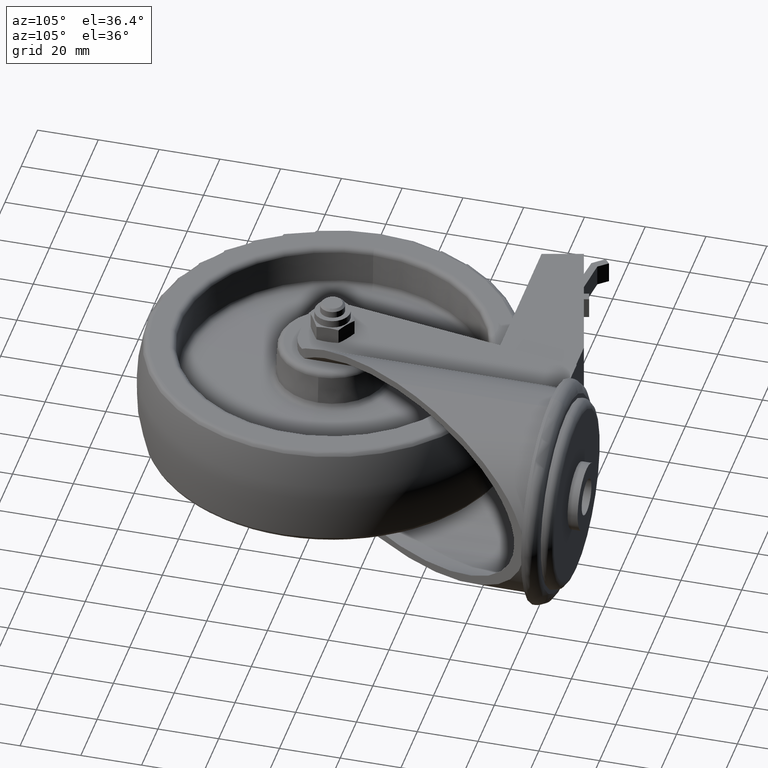
[diagram: clean part render]
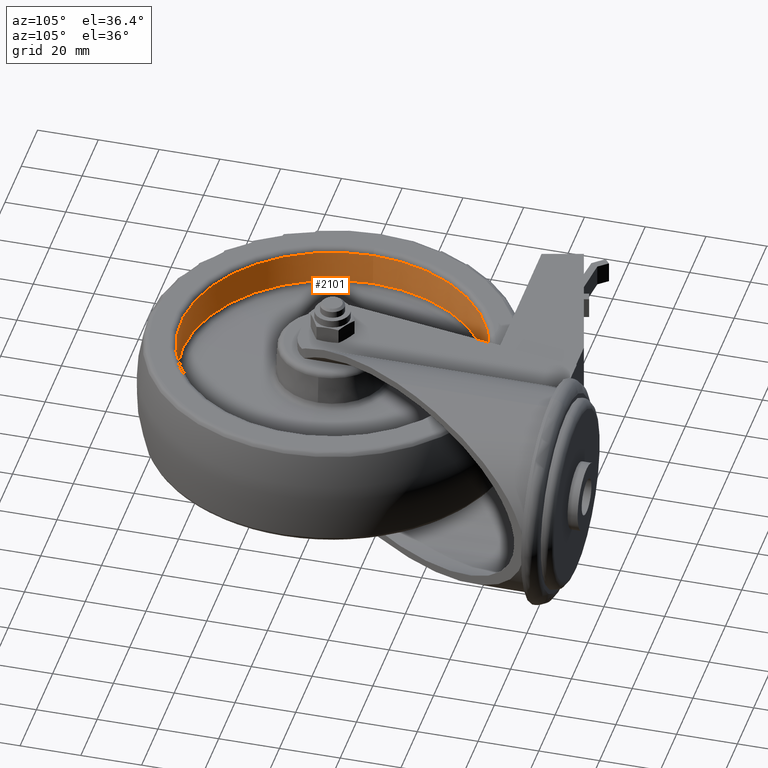
[diagram: same view with one face highlighted and labeled with its STEP entity id]
A machine part, auxiliary view. The second image highlights one B-rep face of the part: STEP entity #2101.
In plain terms, the highlighted conical surface has half-angle 3 deg.
Its self-contained STEP definition (entity closure, byte-faithful):
#99=CONICAL_SURFACE('',#2440,49.3445434288459,0.0523598775598294);
#353=FACE_OUTER_BOUND('',#500,.T.);
#500=EDGE_LOOP('',(#1910,#1911,#1912,#1913));
#598=CIRCLE('',#2439,49.3445434288459);
#599=CIRCLE('',#2441,49.9006700639206);
#756=LINE('',#3785,#889);
#889=VECTOR('',#3025,49.3445434288459);
#1062=VERTEX_POINT('',#3780);
#1063=VERTEX_POINT('',#3784);
#1346=EDGE_CURVE('',#1062,#1062,#598,.T.);
#1347=EDGE_CURVE('',#1062,#1063,#756,.T.);
#1348=EDGE_CURVE('',#1063,#1063,#599,.T.);
#1910=ORIENTED_EDGE('',*,*,#1346,.F.);
#1911=ORIENTED_EDGE('',*,*,#1347,.T.);
#1912=ORIENTED_EDGE('',*,*,#1348,.T.);
#1913=ORIENTED_EDGE('',*,*,#1347,.F.);
#2101=ADVANCED_FACE('',(#353),#99,.F.);
#2439=AXIS2_PLACEMENT_3D('',#3782,#3021,#3022);
#2440=AXIS2_PLACEMENT_3D('',#3783,#3023,#3024);
#2441=AXIS2_PLACEMENT_3D('',#3786,#3026,#3027);
#3021=DIRECTION('center_axis',(0.,0.,1.));
#3022=DIRECTION('ref_axis',(1.,0.,0.));
#3023=DIRECTION('center_axis',(0.,0.,1.));
#3024=DIRECTION('ref_axis',(1.,0.,0.));
#3025=DIRECTION('',(-0.0523359562429433,-6.40930612932365E-18,0.998629534754574));
#3026=DIRECTION('center_axis',(0.,0.,1.));
#3027=DIRECTION('ref_axis',(1.,0.,0.));
#3780=CARTESIAN_POINT('',(-49.3445434288459,-6.04296371655237E-15,4.99314357293912));
#3782=CARTESIAN_POINT('Origin',(0.,0.,4.99314357293912));
#3783=CARTESIAN_POINT('Origin',(0.,0.,4.99314357293912));
#3784=CARTESIAN_POINT('',(-49.9006700639206,-6.11106958690885E-15,15.6046719124859));
#3785=CARTESIAN_POINT('',(-49.3445434288459,-6.04296371655237E-15,4.99314357293912));
#3786=CARTESIAN_POINT('Origin',(0.,0.,15.6046719124859));